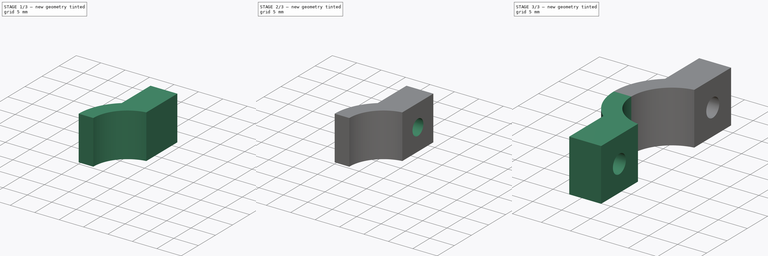
[diagram: build sequence overview — one tinted view per stage of 3, left to right]
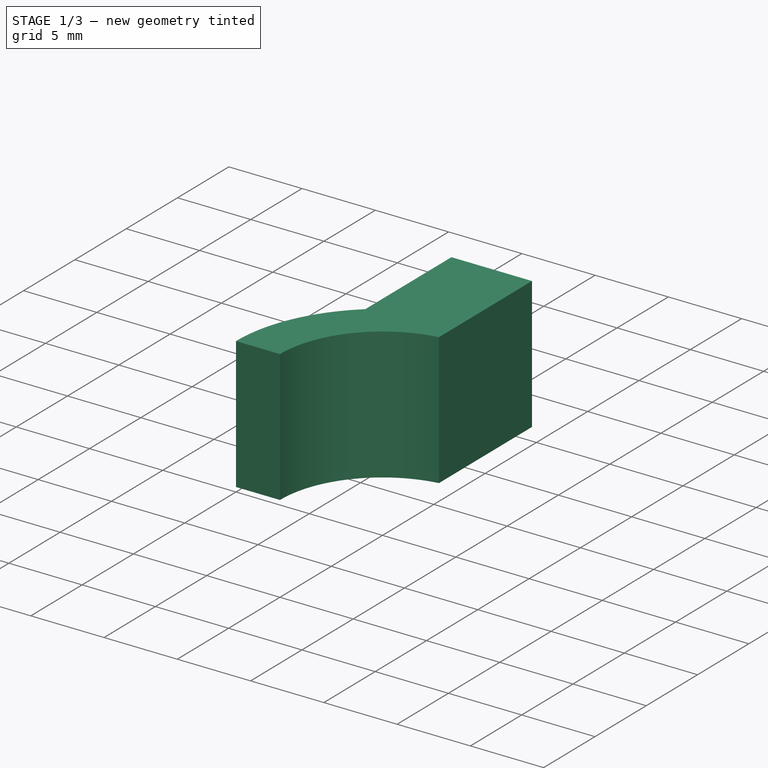
[diagram: stage 1 of 3 — iso view after this stage's code; geometry added in this stage tinted green]
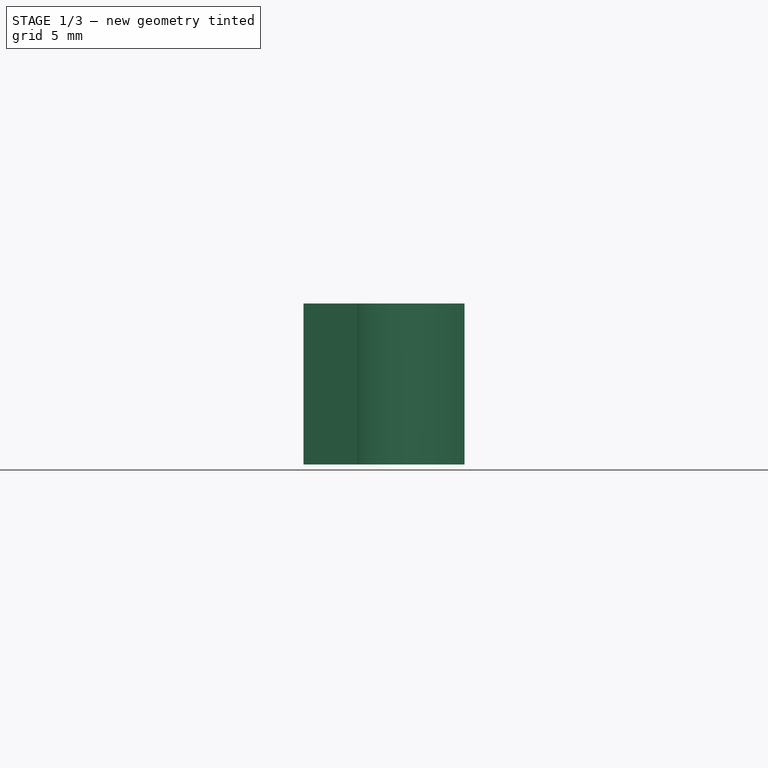
[diagram: stage 1 of 3 — front view after this stage's code; geometry added in this stage tinted green]
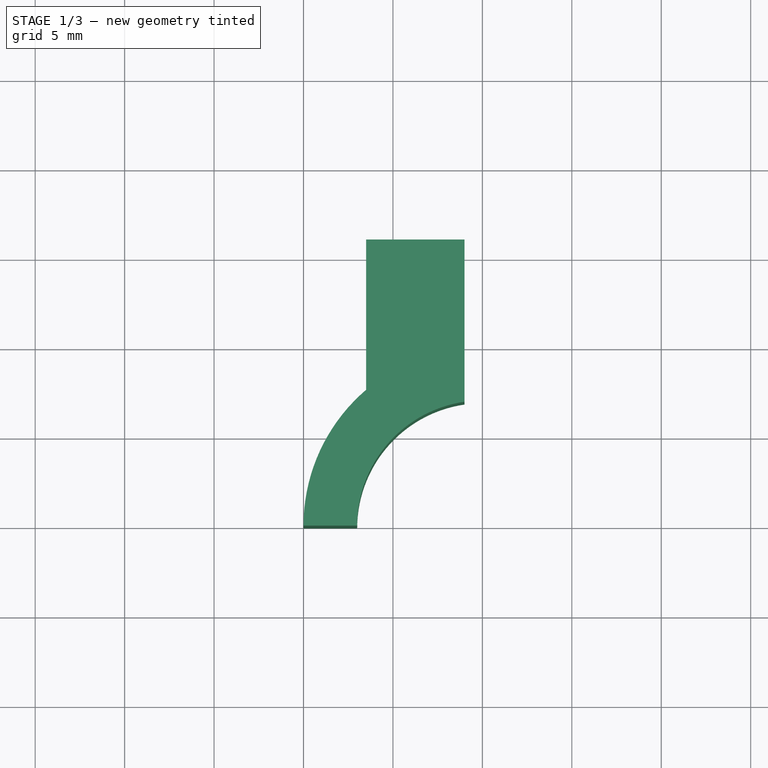
[diagram: stage 1 of 3 — top view after this stage's code; geometry added in this stage tinted green]
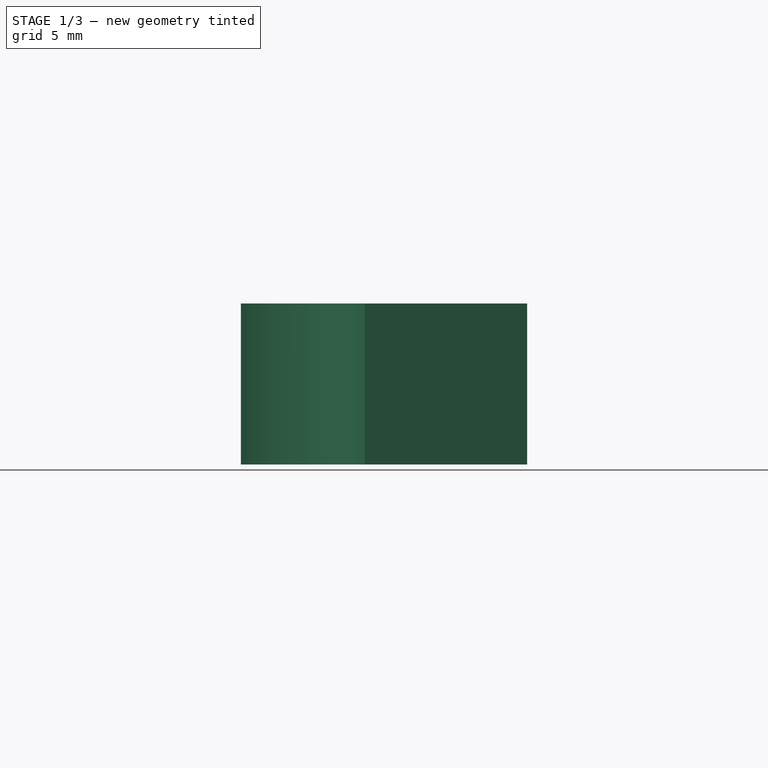
[diagram: stage 1 of 3 — right view after this stage's code; geometry added in this stage tinted green]
FCSTD DOCUMENT  (FreeCAD 0.14R3700 (Git))
Label: wire_brace_uperclamp
License: CC-BY 3.0
LicenseURL: http://creativecommons.org/licenses/by/3.0/
objects: Sketcher::SketchObject×3, PartDesign::Pocket×2, PartDesign::Pad×1, Part::Mirroring×1, Part::Fuse×1
note: 11 computed .brp shape members not serialized (recipe doc carries the construction recipe); baked Part::Feature solids carry a one-line shape summary decoded from their .brp

FEATURE [Sketcher::SketchObject] Sketch
  sketch-geometry (6):
    g0: ArcOfCircle CenterX=0 CenterY=0 CenterZ=0 NormalX=0 NormalY=0 NormalZ=1 Radius=7 StartAngle=1.71414 EndAngle=3.14159
    g1: ArcOfCircle CenterX=0 CenterY=0 CenterZ=0 NormalX=0 NormalY=0 NormalZ=1 Radius=10 StartAngle=2.27838 EndAngle=3.14159
    g2: LineSegment StartX=-6.5 StartY=16 StartZ=0 EndX=-1 EndY=16 EndZ=0
    g3: LineSegment StartX=-1 StartY=16 StartZ=0 EndX=-1 EndY=6.9282 EndZ=0
    g4: LineSegment StartX=-10 StartY=0 StartZ=0 EndX=-7 EndY=0 EndZ=0
    g5: LineSegment StartX=-6.5 StartY=7.59934 StartZ=0 EndX=-6.5 EndY=16 EndZ=0
  constraints (18):
    c: Radius(g0) = 7
    c: Radius(g1) = 10
    c: Coincident(g1,g-1)
    c: Coincident(g0,g-1)
    c: Coincident(g2,g3)
    c: Coincident(g5,g2)
    c: Horizontal(g2)
    c: Vertical(g3)
    c: DistanceX(g-1,g2) = -1
    c: DistanceY(g-1,g2) = 16
    c: DistanceX(g2,g2) = 5.5
    c: Horizontal(g4)
    c: Coincident(g1,g5)
    c: Coincident(g0,g3)
    c: Coincident(g1,g4)
    c: Coincident(g0,g4)
    c: DistanceY(g-1,g0) = 0
    c: Vertical(g5)
FEATURE [PartDesign::Pad] Pad
  Length = 9
  Length2 = 3
  Sketch = -> Sketch
  Type = 0
FEATURE [Sketcher::SketchObject] Sketch001
  ExternalGeometry = -> [Pad]
  Placement = pos=(-6.5,0,0) rot=(0.57735,-0.57735,-0.57735;2.0944rad)
  Support = -> Pad [Face1]
  sketch-geometry (7):
    g0: Circle [constr] CenterX=-11.5 CenterY=4.5 CenterZ=0 NormalX=0 NormalY=0 NormalZ=1 Radius=3
    g1: LineSegment StartX=-13.2321 StartY=7.5 StartZ=0 EndX=-9.76795 EndY=7.5 EndZ=0
    g2: LineSegment StartX=-9.76795 StartY=7.5 StartZ=0 EndX=-8.0359 EndY=4.5 EndZ=0
    g3: LineSegment StartX=-8.0359 StartY=4.5 StartZ=0 EndX=-9.76795 EndY=1.5 EndZ=0
    g4: LineSegment StartX=-9.76795 StartY=1.5 StartZ=0 EndX=-13.2321 EndY=1.5 EndZ=0
    g5: LineSegment StartX=-13.2321 StartY=1.5 StartZ=0 EndX=-14.9641 EndY=4.5 EndZ=0
    g6: LineSegment StartX=-14.9641 StartY=4.5 StartZ=0 EndX=-13.2321 EndY=7.5 EndZ=0
  constraints (22):
    c: Radius(g0) = 3
    c: Coincident(g1,g2)
    c: Coincident(g2,g3)
    c: Coincident(g3,g4)
    c: Coincident(g4,g5)
    c: Coincident(g5,g6)
    c: Coincident(g1,g6)
    c: Tangent(g0,g6)
    c: Tangent(g5,g0)
    c: Tangent(g4,g0)
    c: Horizontal(g4)
    c: Horizontal(g1)
    c: Tangent(g1,g0)
    c: Tangent(g2,g0)
    c: Tangent(g3,g0)
    c: Equal(g3,g4)
    c: Equal(g4,g5)
    c: Equal(g6,g1)
    c: Equal(g1,g2)
    c: Equal(g2,g3)
    c: DistanceX(g0,g-3) = -4.5
    c: DistanceY(g-3,g0) = -4.5
FEATURE [PartDesign::Pocket] Pocket
  Length = 3
  Sketch = -> Sketch001
  Type = 0
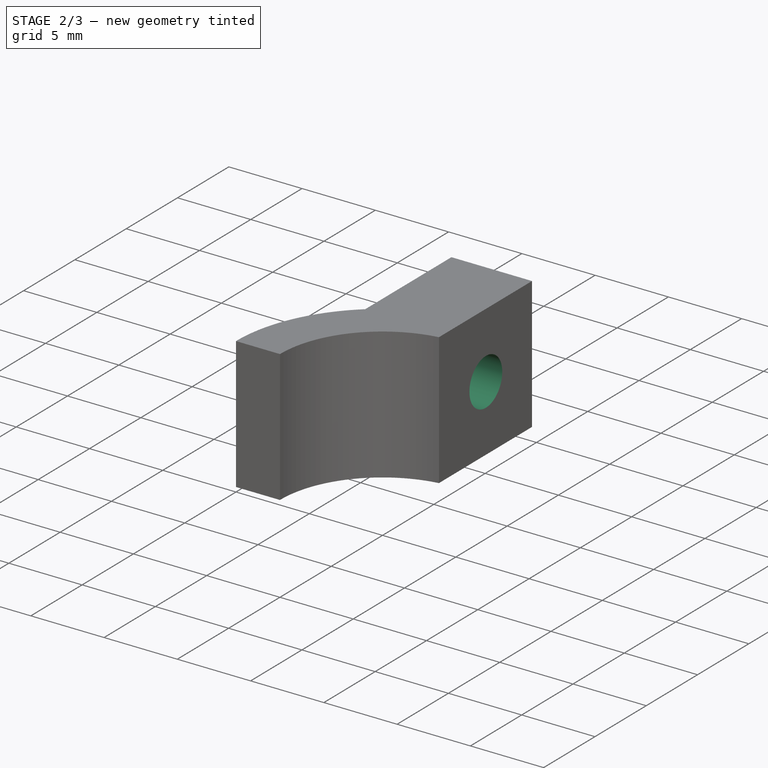
[diagram: stage 2 of 3 — iso view after this stage's code; geometry added in this stage tinted green]
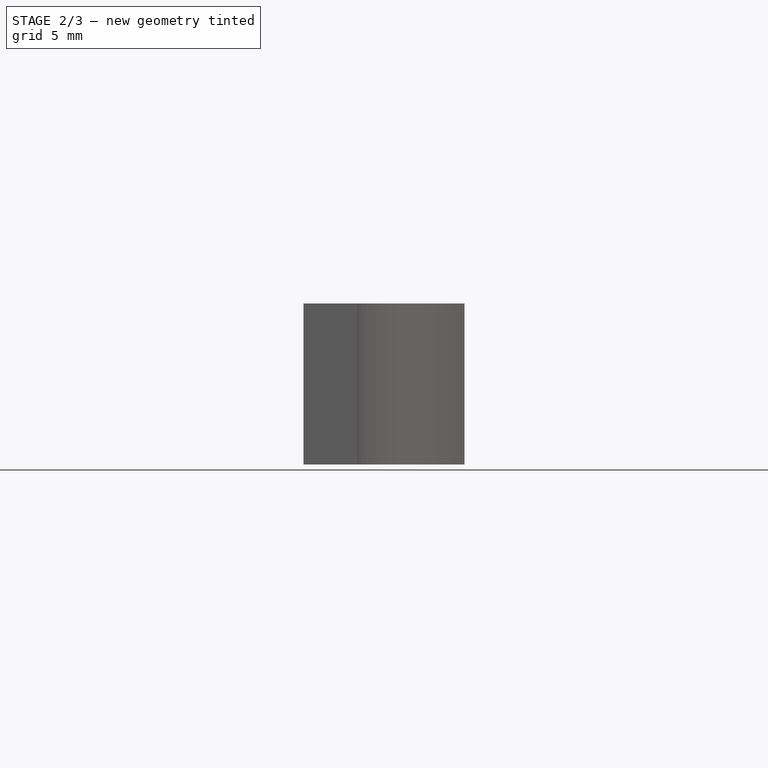
[diagram: stage 2 of 3 — front view after this stage's code; geometry added in this stage tinted green]
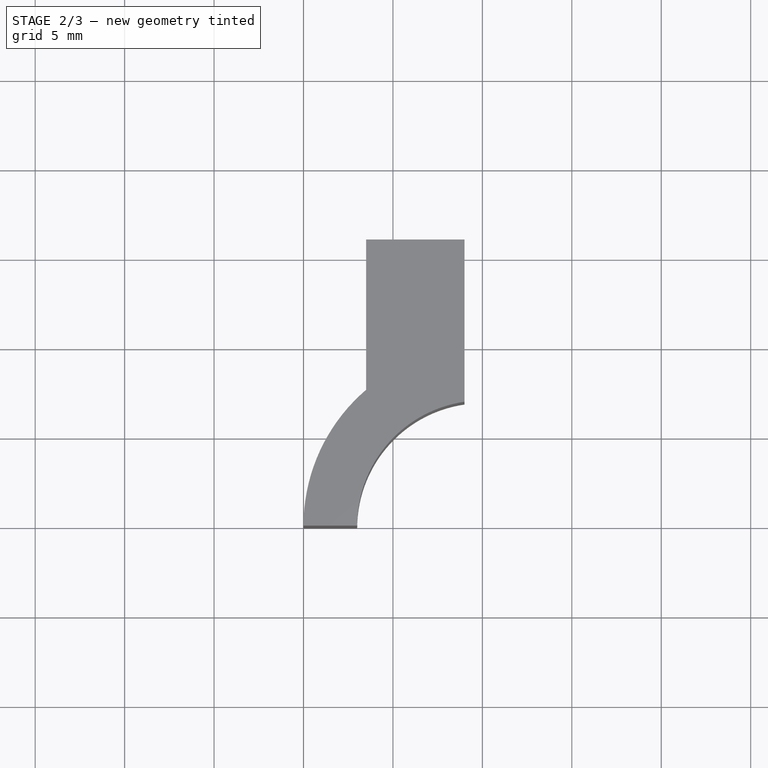
[diagram: stage 2 of 3 — top view after this stage's code; geometry added in this stage tinted green]
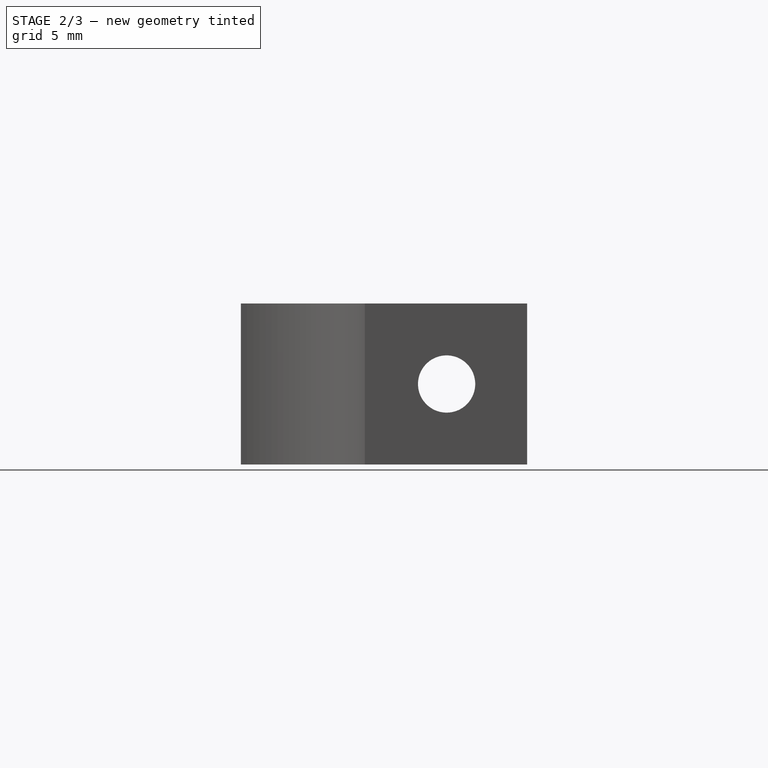
[diagram: stage 2 of 3 — right view after this stage's code; geometry added in this stage tinted green]
FEATURE [Sketcher::SketchObject] Sketch002
  ExternalGeometry = -> [Pocket]
  Placement = pos=(-3.5,0,0) rot=(0.57735,-0.57735,-0.57735;2.0944rad)
  Support = -> Pocket [Face15]
  sketch-geometry (1):
    g0: Circle CenterX=-11.5 CenterY=4.5 CenterZ=0 NormalX=0 NormalY=0 NormalZ=1 Radius=1.6
  constraints (3):
    c: DistanceX(g-3,g0) = 4.5
    c: DistanceY(g0,g-3) = 4.5
    c: Radius(g0) = 1.6
FEATURE [PartDesign::Pocket] Pocket001
  Length = 5
  Sketch = -> Sketch002
  Type = 0
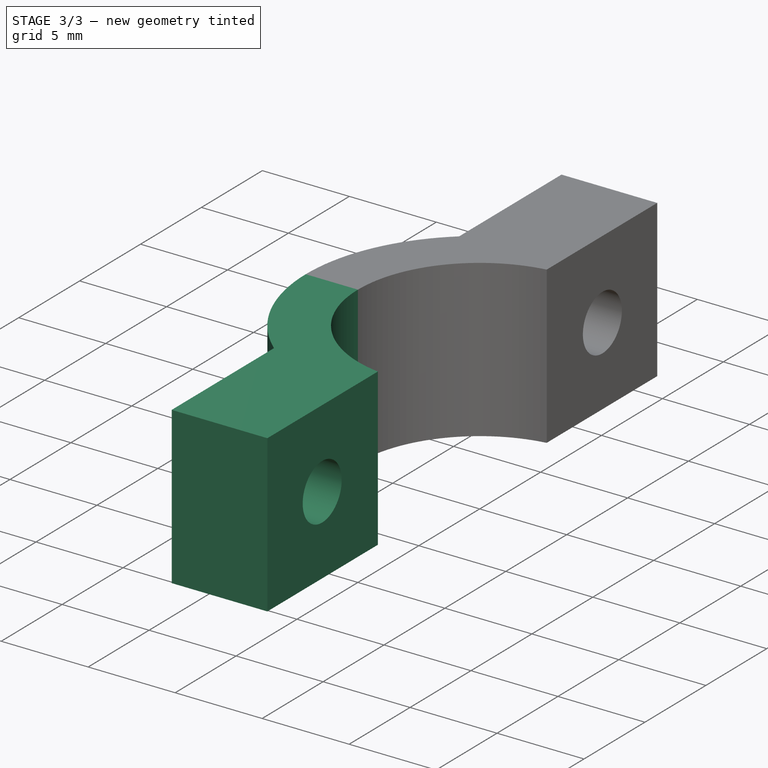
[diagram: stage 3 of 3 — iso view after this stage's code; geometry added in this stage tinted green]
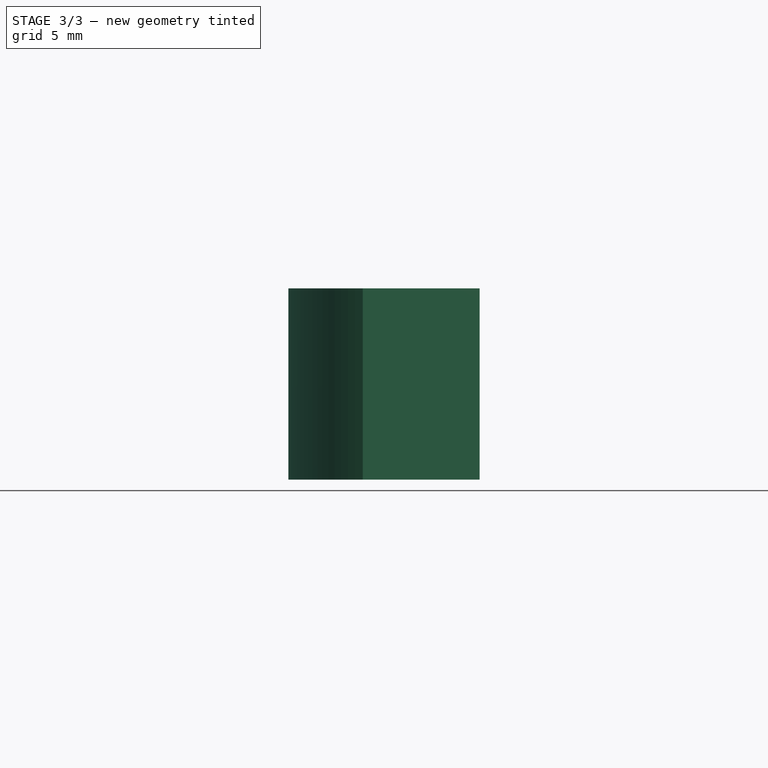
[diagram: stage 3 of 3 — front view after this stage's code; geometry added in this stage tinted green]
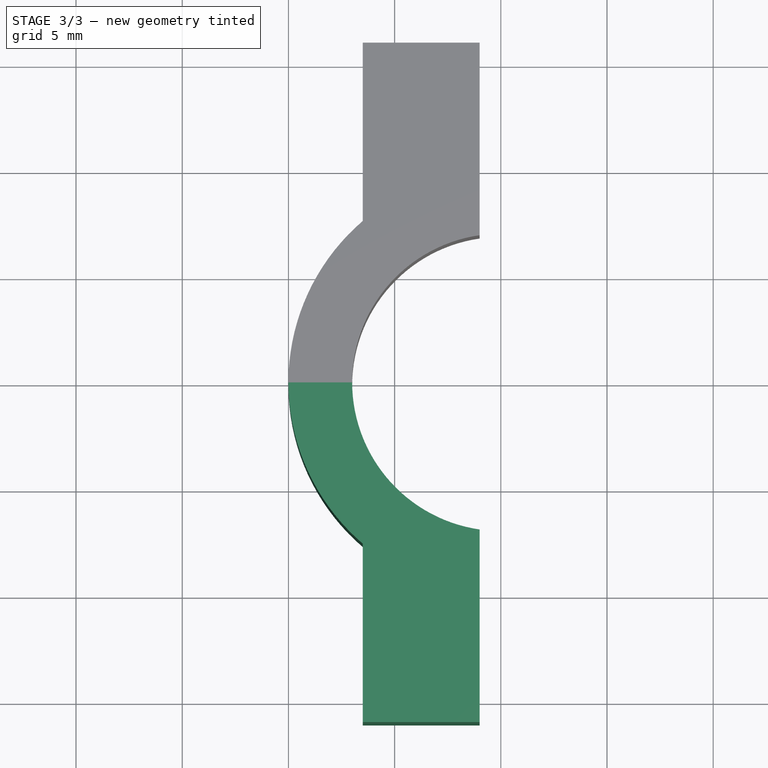
[diagram: stage 3 of 3 — top view after this stage's code; geometry added in this stage tinted green]
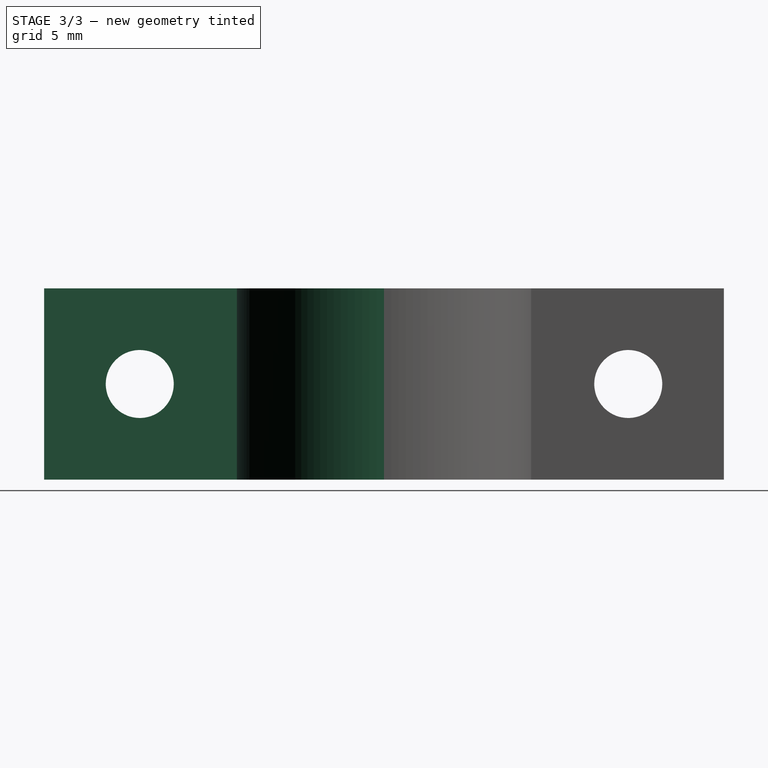
[diagram: stage 3 of 3 — right view after this stage's code; geometry added in this stage tinted green]
FEATURE [Part::Mirroring] Part__Mirroring  label="Pocket001 (Mirror #1)"
  Base = (0,0,0)
  Normal = (0,1,0)
  Source = -> Pocket001
FEATURE [Part::Fuse] Fusion
  Base = -> Pocket001
  Tool = -> Part__Mirroring
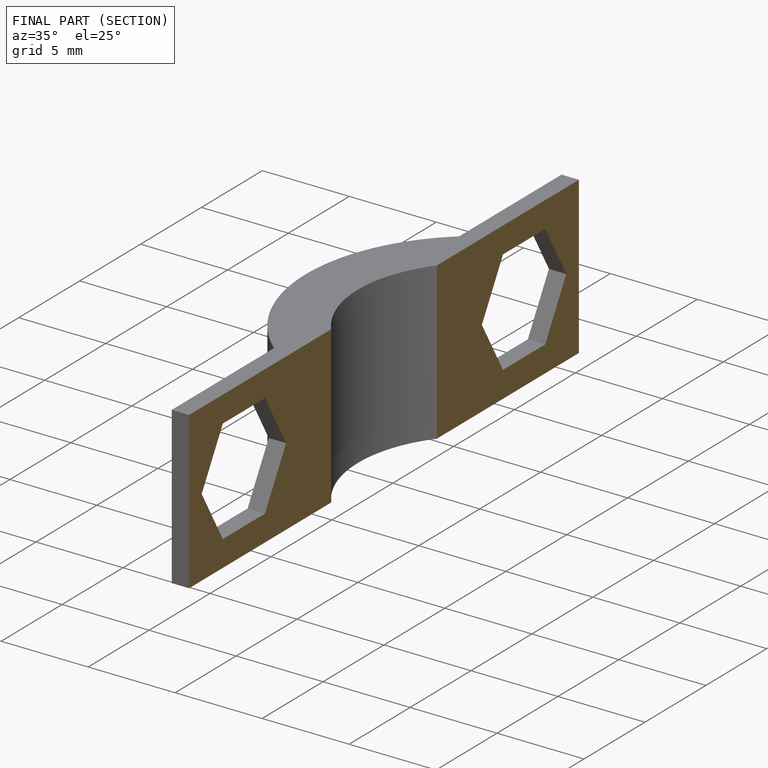
[diagram: finished part — half-section view (interior)]
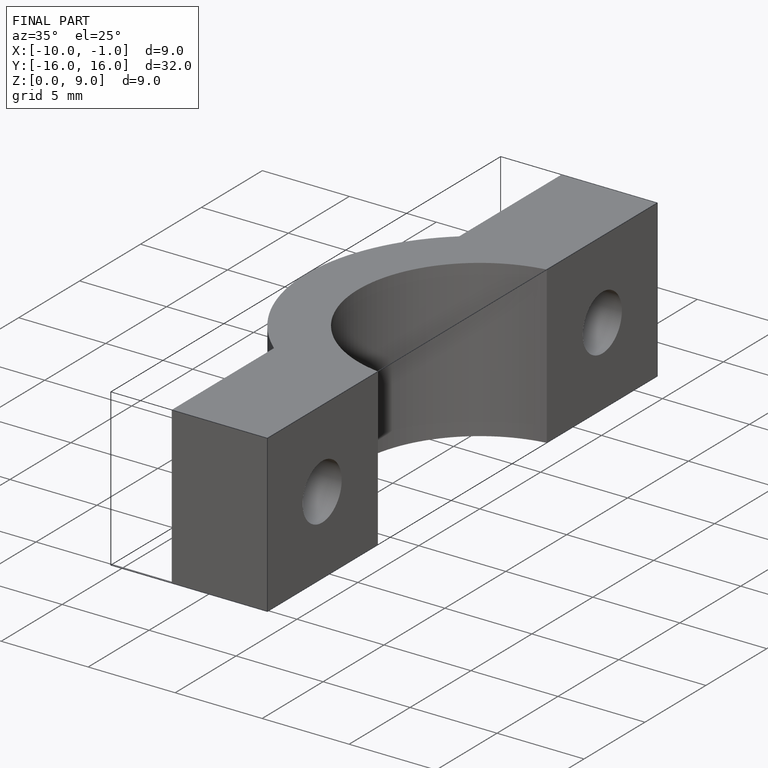
[diagram: finished part — iso view with bounding-box wireframe]
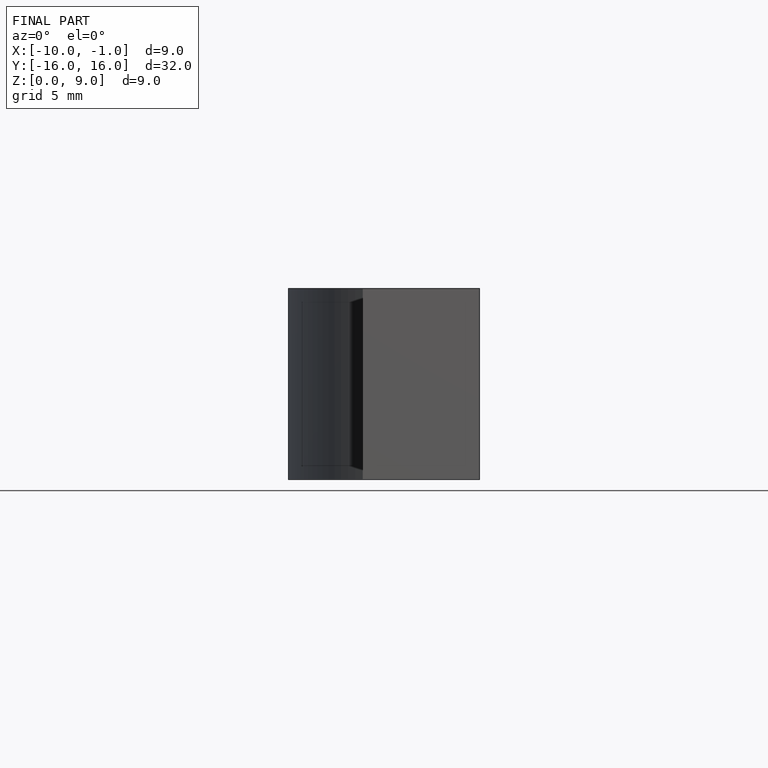
[diagram: finished part — front view with bounding-box wireframe]
